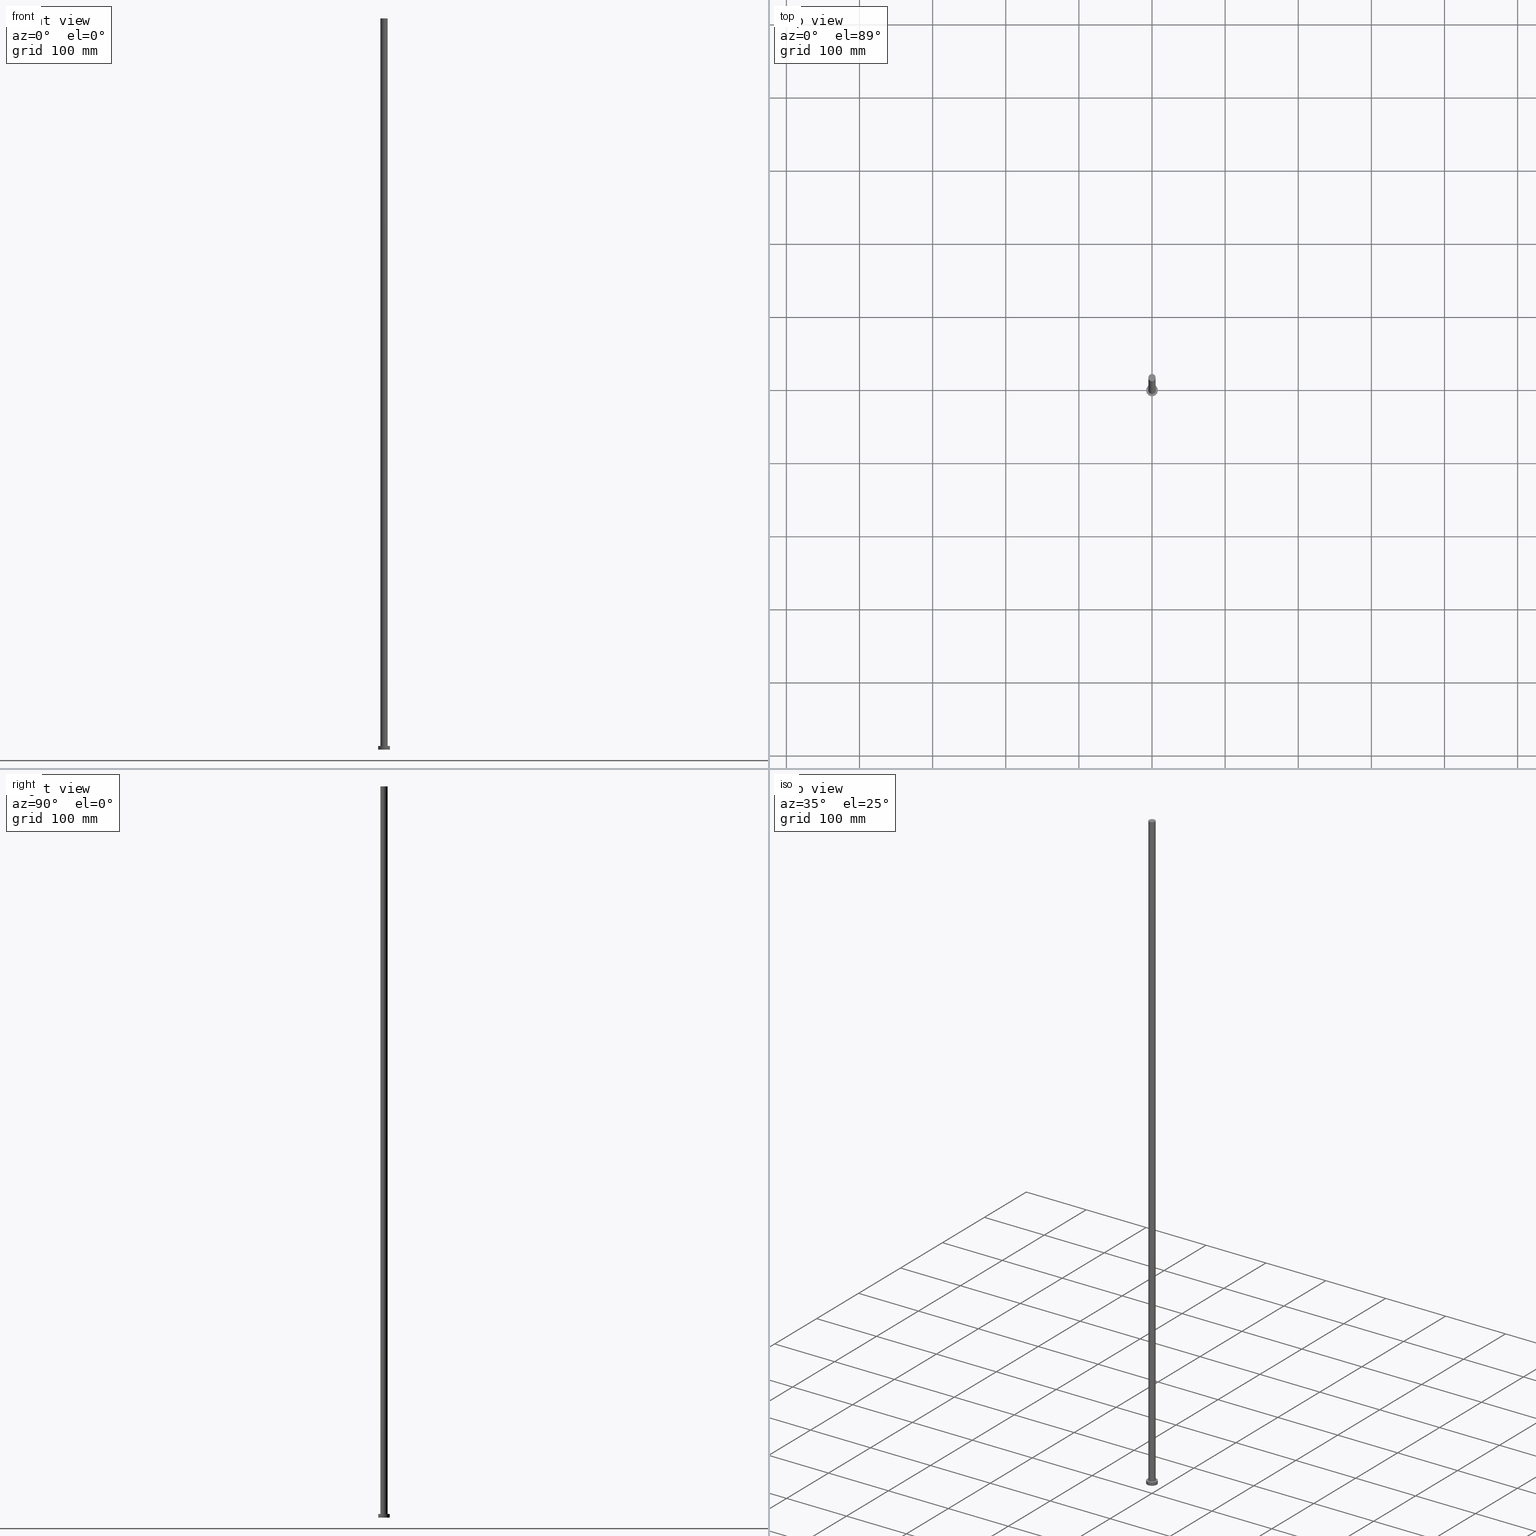
[diagram: canonical four-view strip — front | top / right | iso, engineering-drawing reading convention]
A machine part, canonical four-view strip (front | top / right | iso — engineering-drawing reading convention). The complete STEP part file that produces these views, byte-faithful:
ISO-10303-21;
HEADER;
FILE_DESCRIPTION (( 'STEP AP203' ),
    '1' );
FILE_NAME ('3291.STEP',
    '2023-02-13T09:58:05',
    ( '' ),
    ( '' ),
    'SwSTEP 2.0',
    'SolidWorks 2019',
    '' );
FILE_SCHEMA (( 'CONFIG_CONTROL_DESIGN' ));
ENDSEC;

DATA;
#1 = EDGE_LOOP ( 'NONE', ( #254, #22, #62, #116 ) ) ;
#2 = EDGE_CURVE ( 'NONE', #235, #98, #26, .T. ) ;
#3 = EDGE_LOOP ( 'NONE', ( #27, #99 ) ) ;
#4 = ADVANCED_FACE ( 'NONE', ( #244 ), #87, .F. ) ;
#5 = ADVANCED_BREP_SHAPE_REPRESENTATION ( '3291', ( #8, #81 ), #93 ) ;
#6 = CC_DESIGN_SECURITY_CLASSIFICATION ( #23, ( #202 ) ) ;
#7 = PLANE ( 'NONE',  #229 ) ;
#8 = MANIFOLD_SOLID_BREP ( 'P�idat vysunut�m3', #241 ) ;
#9 = AXIS2_PLACEMENT_3D ( 'NONE', #51, #105, #121 ) ;
#10 = CARTESIAN_POINT ( 'NONE',  ( 0.000000000000000000, 0.000000000000000000, 5.000000000000000000 ) ) ;
#11 = DIRECTION ( 'NONE',  ( 0.000000000000000000, 0.000000000000000000, 1.000000000000000000 ) ) ;
#12 = CARTESIAN_POINT ( 'NONE',  ( 8.000000000000000000, 9.797174393178825657E-16, 0.000000000000000000 ) ) ;
#13 = DIRECTION ( 'NONE',  ( 1.000000000000000000, 0.000000000000000000, 0.000000000000000000 ) ) ;
#14 = EDGE_CURVE ( 'NONE', #98, #235, #250, .T. ) ;
#15 = AXIS2_PLACEMENT_3D ( 'NONE', #103, #181, #159 ) ;
#16 = CARTESIAN_POINT ( 'NONE',  ( 8.000000000000000000, 9.797174393178825657E-16, 5.000000000000000000 ) ) ;
#17 = DATE_TIME_ROLE ( 'creation_date' ) ;
#18 = PERSON_AND_ORGANIZATION ( #171, #146 ) ;
#19 = EDGE_CURVE ( 'NONE', #42, #154, #90, .T. ) ;
#20 = VECTOR ( 'NONE', #140, 1000.000000000000000 ) ;
#21 = ORIENTED_EDGE ( 'NONE', *, *, #19, .T. ) ;
#22 = ORIENTED_EDGE ( 'NONE', *, *, #14, .F. ) ;
#23 = SECURITY_CLASSIFICATION ( '', '', #234 ) ;
#24 = CALENDAR_DATE ( 2023, 13, 2 ) ;
#25 = ORIENTED_EDGE ( 'NONE', *, *, #95, .T. ) ;
#26 = CIRCLE ( 'NONE', #195, 8.000000000000000000 ) ;
#27 = ORIENTED_EDGE ( 'NONE', *, *, #155, .F. ) ;
#28 = DIRECTION ( 'NONE',  ( 0.000000000000000000, 0.000000000000000000, 1.000000000000000000 ) ) ;
#29 = CC_DESIGN_APPROVAL ( #86, ( #23 ) ) ;
#30 = CARTESIAN_POINT ( 'NONE',  ( -5.000000000000000888, 0.000000000000000000, 5.000000000000000000 ) ) ;
#31 = DIRECTION ( 'NONE',  ( 1.000000000000000000, 0.000000000000000000, -0.000000000000000000 ) ) ;
#32 = FACE_OUTER_BOUND ( 'NONE', #156, .T. ) ;
#33 = CC_DESIGN_PERSON_AND_ORGANIZATION_ASSIGNMENT ( #18, #41, ( #75 ) ) ;
#34 = EDGE_CURVE ( 'NONE', #135, #210, #53, .T. ) ;
#35 = CARTESIAN_POINT ( 'NONE',  ( 5.000000000000000888, 6.123233995736766282E-16, 1000.000000000000000 ) ) ;
#36 = CC_DESIGN_DATE_AND_TIME_ASSIGNMENT ( #47, #79, ( #23 ) ) ;
#37 = ADVANCED_FACE ( 'NONE', ( #124, #70 ), #50, .T. ) ;
#38 = CC_DESIGN_PERSON_AND_ORGANIZATION_ASSIGNMENT ( #170, #251, ( #202 ) ) ;
#39 = DIRECTION ( 'NONE',  ( -0.000000000000000000, -0.000000000000000000, -1.000000000000000000 ) ) ;
#40 = PERSON_AND_ORGANIZATION ( #171, #146 ) ;
#41 = PERSON_AND_ORGANIZATION_ROLE ( 'design_owner' ) ;
#42 = VERTEX_POINT ( 'NONE', #157 ) ;
#43 = CIRCLE ( 'NONE', #183, 5.000000000000000888 ) ;
#44 = VERTEX_POINT ( 'NONE', #12 ) ;
#45 = VECTOR ( 'NONE', #167, 1000.000000000000000 ) ;
#46 = APPLICATION_CONTEXT ( 'configuration controlled 3d designs of mechanical parts and assemblies' ) ;
#47 = DATE_AND_TIME ( #209, #221 ) ;
#48 = DIRECTION ( 'NONE',  ( -1.000000000000000000, 0.000000000000000000, 0.000000000000000000 ) ) ;
#49 = FACE_OUTER_BOUND ( 'NONE', #131, .T. ) ;
#50 = PLANE ( 'NONE',  #88 ) ;
#51 = CARTESIAN_POINT ( 'NONE',  ( 0.000000000000000000, 0.000000000000000000, 0.000000000000000000 ) ) ;
#52 = ADVANCED_FACE ( 'NONE', ( #32 ), #7, .T. ) ;
#53 = LINE ( 'NONE', #120, #158 ) ;
#54 = CIRCLE ( 'NONE', #9, 8.000000000000000000 ) ;
#55 = DIRECTION ( 'NONE',  ( -0.000000000000000000, -0.000000000000000000, -1.000000000000000000 ) ) ;
#56 = DIRECTION ( 'NONE',  ( 1.000000000000000000, 0.000000000000000000, 0.000000000000000000 ) ) ;
#57 = APPLICATION_PROTOCOL_DEFINITION ( 'international standard', 'config_control_design', 1994, #182 ) ;
#58 = APPROVAL_STATUS ( 'not_yet_approved' ) ;
#59 = EDGE_LOOP ( 'NONE', ( #65, #174 ) ) ;
#60 = EDGE_LOOP ( 'NONE', ( #84, #232 ) ) ;
#61 = APPROVAL_ROLE ( '' ) ;
#62 = ORIENTED_EDGE ( 'NONE', *, *, #238, .T. ) ;
#63 = AXIS2_PLACEMENT_3D ( 'NONE', #126, #199, #198 ) ;
#64 = DIRECTION ( 'NONE',  ( 0.000000000000000000, 0.000000000000000000, 1.000000000000000000 ) ) ;
#65 = ORIENTED_EDGE ( 'NONE', *, *, #169, .F. ) ;
#66 = CARTESIAN_POINT ( 'NONE',  ( 0.000000000000000000, 0.000000000000000000, 1000.000000000000000 ) ) ;
#67 = CARTESIAN_POINT ( 'NONE',  ( 5.000000000000000888, 6.123233995736766282E-16, 5.000000000000000000 ) ) ;
#68 = FACE_OUTER_BOUND ( 'NONE', #1, .T. ) ;
#69 = CARTESIAN_POINT ( 'NONE',  ( 0.000000000000000000, 0.000000000000000000, 0.000000000000000000 ) ) ;
#70 = FACE_OUTER_BOUND ( 'NONE', #60, .T. ) ;
#71 = COORDINATED_UNIVERSAL_TIME_OFFSET ( 1, 0, .AHEAD. ) ;
#72 = DIRECTION ( 'NONE',  ( -1.000000000000000000, 0.000000000000000000, 0.000000000000000000 ) ) ;
#73 = COORDINATED_UNIVERSAL_TIME_OFFSET ( 1, 0, .AHEAD. ) ;
#74 = PERSON_AND_ORGANIZATION ( #171, #146 ) ;
#75 = PRODUCT ( '3291', '3291', '', ( #112 ) ) ;
#76 =( NAMED_UNIT ( * ) SI_UNIT ( $, .STERADIAN. ) SOLID_ANGLE_UNIT ( ) );
#77 = ADVANCED_FACE ( 'NONE', ( #186 ), #91, .T. ) ;
#78 = EDGE_CURVE ( 'NONE', #44, #211, #54, .T. ) ;
#79 = DATE_TIME_ROLE ( 'classification_date' ) ;
#80 = ORIENTED_EDGE ( 'NONE', *, *, #19, .F. ) ;
#81 = AXIS2_PLACEMENT_3D ( 'NONE', #110, #204, #56 ) ;
#82 = APPROVAL ( #108, 'NEUR�EN�' ) ;
#83 = PERSON_AND_ORGANIZATION ( #171, #146 ) ;
#84 = ORIENTED_EDGE ( 'NONE', *, *, #14, .T. ) ;
#85 = APPROVAL_PERSON_ORGANIZATION ( #111, #82, #246 ) ;
#86 = APPROVAL ( #58, 'NEUR�EN�' ) ;
#87 = PLANE ( 'NONE',  #128 ) ;
#88 = AXIS2_PLACEMENT_3D ( 'NONE', #243, #213, #203 ) ;
#89 = DIRECTION ( 'NONE',  ( -0.000000000000000000, -0.000000000000000000, -1.000000000000000000 ) ) ;
#90 = LINE ( 'NONE', #161, #20 ) ;
#91 = CYLINDRICAL_SURFACE ( 'NONE', #115, 5.000000000000000888 ) ;
#92 = DATE_AND_TIME ( #188, #215 ) ;
#93 =( GEOMETRIC_REPRESENTATION_CONTEXT ( 3 ) GLOBAL_UNCERTAINTY_ASSIGNED_CONTEXT ( ( #162 ) ) GLOBAL_UNIT_ASSIGNED_CONTEXT ( ( #222, #172, #76 ) ) REPRESENTATION_CONTEXT ( 'NONE', 'WORKASPACE' ) );
#94 = APPROVAL_DATE_TIME ( #92, #82 ) ;
#95 = EDGE_CURVE ( 'NONE', #210, #154, #43, .T. ) ;
#96 = CYLINDRICAL_SURFACE ( 'NONE', #180, 8.000000000000000000 ) ;
#97 = VECTOR ( 'NONE', #39, 1000.000000000000000 ) ;
#98 = VERTEX_POINT ( 'NONE', #184 ) ;
#99 = ORIENTED_EDGE ( 'NONE', *, *, #95, .F. ) ;
#100 = COORDINATED_UNIVERSAL_TIME_OFFSET ( 1, 0, .AHEAD. ) ;
#101 = ORIENTED_EDGE ( 'NONE', *, *, #165, .T. ) ;
#102 = ORIENTED_EDGE ( 'NONE', *, *, #151, .T. ) ;
#103 = CARTESIAN_POINT ( 'NONE',  ( 0.000000000000000000, 0.000000000000000000, 0.000000000000000000 ) ) ;
#104 = DIRECTION ( 'NONE',  ( 0.000000000000000000, 0.000000000000000000, 1.000000000000000000 ) ) ;
#105 = DIRECTION ( 'NONE',  ( 0.000000000000000000, 0.000000000000000000, 1.000000000000000000 ) ) ;
#106 = CARTESIAN_POINT ( 'NONE',  ( 0.000000000000000000, 0.000000000000000000, 1000.000000000000000 ) ) ;
#107 = DIRECTION ( 'NONE',  ( 0.000000000000000000, 0.000000000000000000, 1.000000000000000000 ) ) ;
#108 = APPROVAL_STATUS ( 'not_yet_approved' ) ;
#109 = APPROVAL_ROLE ( '' ) ;
#110 = CARTESIAN_POINT ( 'NONE',  ( 0.000000000000000000, 0.000000000000000000, 0.000000000000000000 ) ) ;
#111 = PERSON_AND_ORGANIZATION ( #171, #146 ) ;
#112 = MECHANICAL_CONTEXT ( 'NONE', #182, 'mechanical' ) ;
#113 = CIRCLE ( 'NONE', #145, 5.000000000000000888 ) ;
#114 = ORIENTED_EDGE ( 'NONE', *, *, #78, .T. ) ;
#115 = AXIS2_PLACEMENT_3D ( 'NONE', #200, #89, #48 ) ;
#116 = ORIENTED_EDGE ( 'NONE', *, *, #169, .T. ) ;
#117 = ORIENTED_EDGE ( 'NONE', *, *, #165, .F. ) ;
#118 = COORDINATED_UNIVERSAL_TIME_OFFSET ( 1, 0, .AHEAD. ) ;
#119 = ADVANCED_FACE ( 'NONE', ( #49 ), #214, .T. ) ;
#120 = CARTESIAN_POINT ( 'NONE',  ( 5.000000000000000888, 6.123233995736766282E-16, 1000.000000000000000 ) ) ;
#121 = DIRECTION ( 'NONE',  ( 1.000000000000000000, 0.000000000000000000, 0.000000000000000000 ) ) ;
#122 = APPROVAL_PERSON_ORGANIZATION ( #177, #86, #61 ) ;
#123 = CC_DESIGN_DATE_AND_TIME_ASSIGNMENT ( #148, #17, ( #207 ) ) ;
#124 = FACE_BOUND ( 'NONE', #3, .T. ) ;
#125 = DIRECTION ( 'NONE',  ( -0.000000000000000000, -0.000000000000000000, -1.000000000000000000 ) ) ;
#126 = CARTESIAN_POINT ( 'NONE',  ( 0.000000000000000000, 0.000000000000000000, 1000.000000000000000 ) ) ;
#127 = LOCAL_TIME ( 10, 58, 5.000000000000000000, #223 ) ;
#128 = AXIS2_PLACEMENT_3D ( 'NONE', #69, #219, #31 ) ;
#129 = DATE_AND_TIME ( #166, #127 ) ;
#130 = APPROVAL_PERSON_ORGANIZATION ( #247, #136, #109 ) ;
#131 = EDGE_LOOP ( 'NONE', ( #231, #117, #21, #197 ) ) ;
#132 = ORIENTED_EDGE ( 'NONE', *, *, #151, .F. ) ;
#133 = PRODUCT_RELATED_PRODUCT_CATEGORY ( 'detail', '', ( #75 ) ) ;
#134 = DATE_AND_TIME ( #24, #255 ) ;
#135 = VERTEX_POINT ( 'NONE', #35 ) ;
#136 = APPROVAL ( #192, 'NEUR�EN�' ) ;
#137 = PERSON_AND_ORGANIZATION_ROLE ( 'classification_officer' ) ;
#138 = CC_DESIGN_PERSON_AND_ORGANIZATION_ASSIGNMENT ( #74, #153, ( #202 ) ) ;
#139 = DIRECTION ( 'NONE',  ( 0.000000000000000000, 0.000000000000000000, 1.000000000000000000 ) ) ;
#140 = DIRECTION ( 'NONE',  ( -0.000000000000000000, -0.000000000000000000, -1.000000000000000000 ) ) ;
#141 = CYLINDRICAL_SURFACE ( 'NONE', #152, 8.000000000000000000 ) ;
#142 = DIRECTION ( 'NONE',  ( 1.000000000000000000, 0.000000000000000000, 0.000000000000000000 ) ) ;
#143 = CARTESIAN_POINT ( 'NONE',  ( 0.000000000000000000, 0.000000000000000000, 1000.000000000000000 ) ) ;
#144 = FACE_OUTER_BOUND ( 'NONE', #208, .T. ) ;
#145 = AXIS2_PLACEMENT_3D ( 'NONE', #66, #139, #242 ) ;
#146 = ORGANIZATION ( 'NEUR�EN�', 'NEUR�EN�', '' ) ;
#147 = LINE ( 'NONE', #16, #45 ) ;
#148 = DATE_AND_TIME ( #206, #227 ) ;
#149 = CARTESIAN_POINT ( 'NONE',  ( -8.000000000000000000, 0.000000000000000000, 5.000000000000000000 ) ) ;
#150 = CARTESIAN_POINT ( 'NONE',  ( 8.000000000000000000, 9.797174393178825657E-16, 5.000000000000000000 ) ) ;
#151 = EDGE_CURVE ( 'NONE', #135, #42, #168, .T. ) ;
#152 = AXIS2_PLACEMENT_3D ( 'NONE', #216, #191, #72 ) ;
#153 = PERSON_AND_ORGANIZATION_ROLE ( 'design_supplier' ) ;
#154 = VERTEX_POINT ( 'NONE', #30 ) ;
#155 = EDGE_CURVE ( 'NONE', #154, #210, #193, .T. ) ;
#156 = EDGE_LOOP ( 'NONE', ( #101, #102 ) ) ;
#157 = CARTESIAN_POINT ( 'NONE',  ( -5.000000000000000888, 0.000000000000000000, 1000.000000000000000 ) ) ;
#158 = VECTOR ( 'NONE', #125, 1000.000000000000000 ) ;
#159 = DIRECTION ( 'NONE',  ( 1.000000000000000000, 0.000000000000000000, 0.000000000000000000 ) ) ;
#160 = CARTESIAN_POINT ( 'NONE',  ( -8.000000000000000000, 0.000000000000000000, 0.000000000000000000 ) ) ;
#161 = CARTESIAN_POINT ( 'NONE',  ( -5.000000000000000888, 0.000000000000000000, 1000.000000000000000 ) ) ;
#162 = UNCERTAINTY_MEASURE_WITH_UNIT (LENGTH_MEASURE( 1.000000000000000082E-05 ), #222, 'distance_accuracy_value', 'NONE');
#163 = CC_DESIGN_PERSON_AND_ORGANIZATION_ASSIGNMENT ( #40, #189, ( #207 ) ) ;
#164 = CARTESIAN_POINT ( 'NONE',  ( 0.000000000000000000, 0.000000000000000000, 5.000000000000000000 ) ) ;
#165 = EDGE_CURVE ( 'NONE', #42, #135, #113, .T. ) ;
#166 = CALENDAR_DATE ( 2023, 13, 2 ) ;
#167 = DIRECTION ( 'NONE',  ( -0.000000000000000000, -0.000000000000000000, -1.000000000000000000 ) ) ;
#168 = CIRCLE ( 'NONE', #252, 5.000000000000000888 ) ;
#169 = EDGE_CURVE ( 'NONE', #211, #44, #179, .T. ) ;
#170 = PERSON_AND_ORGANIZATION ( #171, #146 ) ;
#171 = PERSON ( 'NEUR�EN�', 'NEUR�EN�', 'NEUR�EN�', ('NEUR�EN�'), ('NEUR�EN�'), ('NEUR�EN�') ) ;
#172 =( NAMED_UNIT ( * ) PLANE_ANGLE_UNIT ( ) SI_UNIT ( $, .RADIAN. ) );
#173 = SHAPE_DEFINITION_REPRESENTATION ( #230, #5 ) ;
#174 = ORIENTED_EDGE ( 'NONE', *, *, #78, .F. ) ;
#175 = ORIENTED_EDGE ( 'NONE', *, *, #2, .F. ) ;
#176 = ORIENTED_EDGE ( 'NONE', *, *, #239, .T. ) ;
#177 = PERSON_AND_ORGANIZATION ( #171, #146 ) ;
#178 = ORIENTED_EDGE ( 'NONE', *, *, #238, .F. ) ;
#179 = CIRCLE ( 'NONE', #15, 8.000000000000000000 ) ;
#180 = AXIS2_PLACEMENT_3D ( 'NONE', #190, #55, #225 ) ;
#181 = DIRECTION ( 'NONE',  ( 0.000000000000000000, 0.000000000000000000, 1.000000000000000000 ) ) ;
#182 = APPLICATION_CONTEXT ( 'configuration controlled 3d designs of mechanical parts and assemblies' ) ;
#183 = AXIS2_PLACEMENT_3D ( 'NONE', #164, #245, #217 ) ;
#184 = CARTESIAN_POINT ( 'NONE',  ( -8.000000000000000000, 0.000000000000000000, 5.000000000000000000 ) ) ;
#185 = DIRECTION ( 'NONE',  ( 1.000000000000000000, 0.000000000000000000, -0.000000000000000000 ) ) ;
#186 = FACE_OUTER_BOUND ( 'NONE', #253, .T. ) ;
#187 = CARTESIAN_POINT ( 'NONE',  ( 0.000000000000000000, 0.000000000000000000, 5.000000000000000000 ) ) ;
#188 = CALENDAR_DATE ( 2023, 13, 2 ) ;
#189 = PERSON_AND_ORGANIZATION_ROLE ( 'creator' ) ;
#190 = CARTESIAN_POINT ( 'NONE',  ( 0.000000000000000000, 0.000000000000000000, 5.000000000000000000 ) ) ;
#191 = DIRECTION ( 'NONE',  ( -0.000000000000000000, -0.000000000000000000, -1.000000000000000000 ) ) ;
#192 = APPROVAL_STATUS ( 'not_yet_approved' ) ;
#193 = CIRCLE ( 'NONE', #220, 5.000000000000000888 ) ;
#194 = CC_DESIGN_APPROVAL ( #136, ( #207 ) ) ;
#195 = AXIS2_PLACEMENT_3D ( 'NONE', #237, #64, #201 ) ;
#196 = ORIENTED_EDGE ( 'NONE', *, *, #34, .T. ) ;
#197 = ORIENTED_EDGE ( 'NONE', *, *, #155, .T. ) ;
#198 = DIRECTION ( 'NONE',  ( -1.000000000000000000, 0.000000000000000000, 0.000000000000000000 ) ) ;
#199 = DIRECTION ( 'NONE',  ( -0.000000000000000000, -0.000000000000000000, -1.000000000000000000 ) ) ;
#200 = CARTESIAN_POINT ( 'NONE',  ( 0.000000000000000000, 0.000000000000000000, 1000.000000000000000 ) ) ;
#201 = DIRECTION ( 'NONE',  ( 1.000000000000000000, 0.000000000000000000, 0.000000000000000000 ) ) ;
#202 = PRODUCT_DEFINITION_FORMATION_WITH_SPECIFIED_SOURCE ( 'LIBOVOLN�', '', #75, .NOT_KNOWN. ) ;
#203 = DIRECTION ( 'NONE',  ( 1.000000000000000000, 0.000000000000000000, -0.000000000000000000 ) ) ;
#204 = DIRECTION ( 'NONE',  ( 0.000000000000000000, 0.000000000000000000, 1.000000000000000000 ) ) ;
#205 = APPROVAL_DATE_TIME ( #129, #136 ) ;
#206 = CALENDAR_DATE ( 2023, 13, 2 ) ;
#207 = PRODUCT_DEFINITION ( 'NEZN�M�', '', #202, #248 ) ;
#208 = EDGE_LOOP ( 'NONE', ( #175, #176, #114, #178 ) ) ;
#209 = CALENDAR_DATE ( 2023, 13, 2 ) ;
#210 = VERTEX_POINT ( 'NONE', #67 ) ;
#211 = VERTEX_POINT ( 'NONE', #160 ) ;
#212 = CC_DESIGN_PERSON_AND_ORGANIZATION_ASSIGNMENT ( #83, #137, ( #23 ) ) ;
#213 = DIRECTION ( 'NONE',  ( 0.000000000000000000, 0.000000000000000000, 1.000000000000000000 ) ) ;
#214 = CYLINDRICAL_SURFACE ( 'NONE', #63, 5.000000000000000888 ) ;
#215 = LOCAL_TIME ( 10, 58, 5.000000000000000000, #71 ) ;
#216 = CARTESIAN_POINT ( 'NONE',  ( 0.000000000000000000, 0.000000000000000000, 5.000000000000000000 ) ) ;
#217 = DIRECTION ( 'NONE',  ( 1.000000000000000000, 0.000000000000000000, 0.000000000000000000 ) ) ;
#218 = ADVANCED_FACE ( 'NONE', ( #68 ), #141, .T. ) ;
#219 = DIRECTION ( 'NONE',  ( 0.000000000000000000, 0.000000000000000000, 1.000000000000000000 ) ) ;
#220 = AXIS2_PLACEMENT_3D ( 'NONE', #10, #28, #240 ) ;
#221 = LOCAL_TIME ( 10, 58, 5.000000000000000000, #118 ) ;
#222 =( LENGTH_UNIT ( ) NAMED_UNIT ( * ) SI_UNIT ( .MILLI., .METRE. ) );
#223 = COORDINATED_UNIVERSAL_TIME_OFFSET ( 1, 0, .AHEAD. ) ;
#224 = AXIS2_PLACEMENT_3D ( 'NONE', #187, #11, #142 ) ;
#225 = DIRECTION ( 'NONE',  ( -1.000000000000000000, 0.000000000000000000, 0.000000000000000000 ) ) ;
#226 = LINE ( 'NONE', #149, #97 ) ;
#227 = LOCAL_TIME ( 10, 58, 5.000000000000000000, #73 ) ;
#228 = ADVANCED_FACE ( 'NONE', ( #144 ), #96, .T. ) ;
#229 = AXIS2_PLACEMENT_3D ( 'NONE', #106, #104, #185 ) ;
#230 = PRODUCT_DEFINITION_SHAPE ( 'NONE', 'NONE',  #207 ) ;
#231 = ORIENTED_EDGE ( 'NONE', *, *, #34, .F. ) ;
#232 = ORIENTED_EDGE ( 'NONE', *, *, #2, .T. ) ;
#233 = CC_DESIGN_APPROVAL ( #82, ( #202 ) ) ;
#234 = SECURITY_CLASSIFICATION_LEVEL ( 'unclassified' ) ;
#235 = VERTEX_POINT ( 'NONE', #150 ) ;
#236 = APPROVAL_DATE_TIME ( #134, #86 ) ;
#237 = CARTESIAN_POINT ( 'NONE',  ( 0.000000000000000000, 0.000000000000000000, 5.000000000000000000 ) ) ;
#238 = EDGE_CURVE ( 'NONE', #98, #211, #226, .T. ) ;
#239 = EDGE_CURVE ( 'NONE', #235, #44, #147, .T. ) ;
#240 = DIRECTION ( 'NONE',  ( 1.000000000000000000, 0.000000000000000000, 0.000000000000000000 ) ) ;
#241 = CLOSED_SHELL ( 'NONE', ( #77, #228, #218, #37, #4, #119, #52 ) ) ;
#242 = DIRECTION ( 'NONE',  ( 1.000000000000000000, 0.000000000000000000, 0.000000000000000000 ) ) ;
#243 = CARTESIAN_POINT ( 'NONE',  ( 0.000000000000000000, 0.000000000000000000, 5.000000000000000000 ) ) ;
#244 = FACE_OUTER_BOUND ( 'NONE', #59, .T. ) ;
#245 = DIRECTION ( 'NONE',  ( 0.000000000000000000, 0.000000000000000000, 1.000000000000000000 ) ) ;
#246 = APPROVAL_ROLE ( '' ) ;
#247 = PERSON_AND_ORGANIZATION ( #171, #146 ) ;
#248 = DESIGN_CONTEXT ( 'detailed design', #46, 'design' ) ;
#249 = APPLICATION_PROTOCOL_DEFINITION ( 'international standard', 'config_control_design', 1994, #46 ) ;
#250 = CIRCLE ( 'NONE', #224, 8.000000000000000000 ) ;
#251 = PERSON_AND_ORGANIZATION_ROLE ( 'creator' ) ;
#252 = AXIS2_PLACEMENT_3D ( 'NONE', #143, #107, #13 ) ;
#253 = EDGE_LOOP ( 'NONE', ( #132, #196, #25, #80 ) ) ;
#254 = ORIENTED_EDGE ( 'NONE', *, *, #239, .F. ) ;
#255 = LOCAL_TIME ( 10, 58, 5.000000000000000000, #100 ) ;
ENDSEC;
END-ISO-10303-21;
